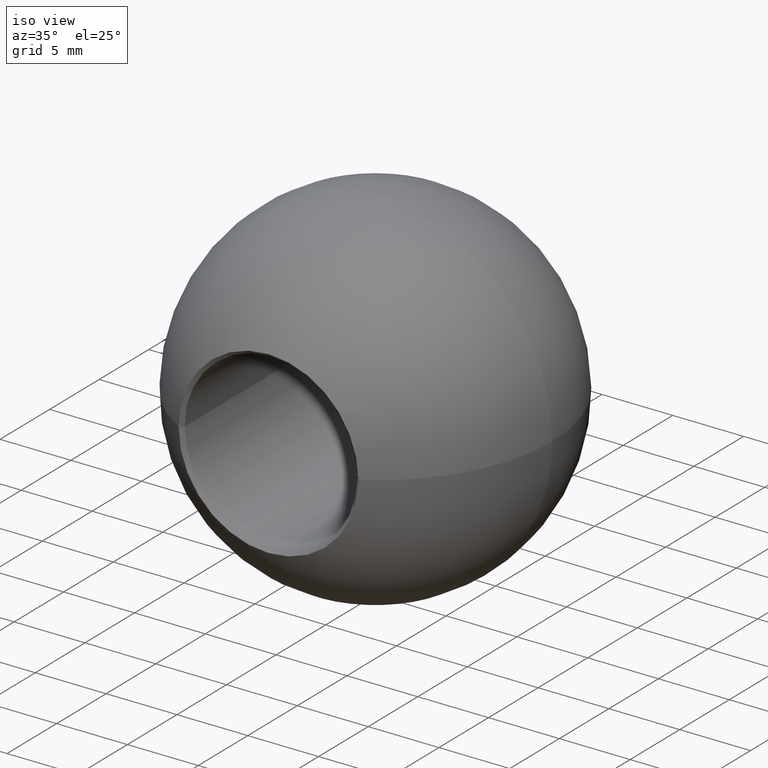
[diagram: clean part render]
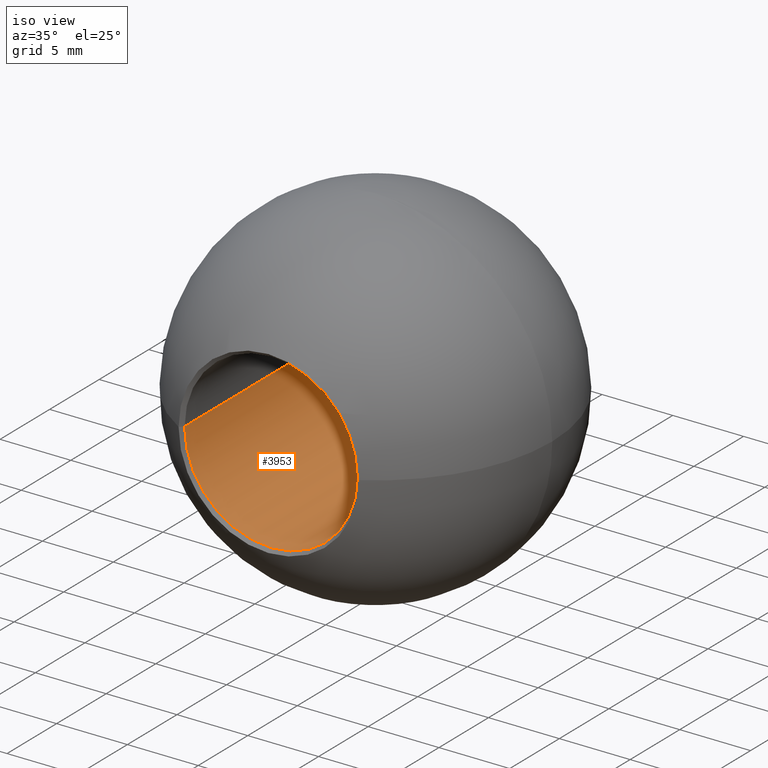
[diagram: same view with one face highlighted and labeled with its STEP entity id]
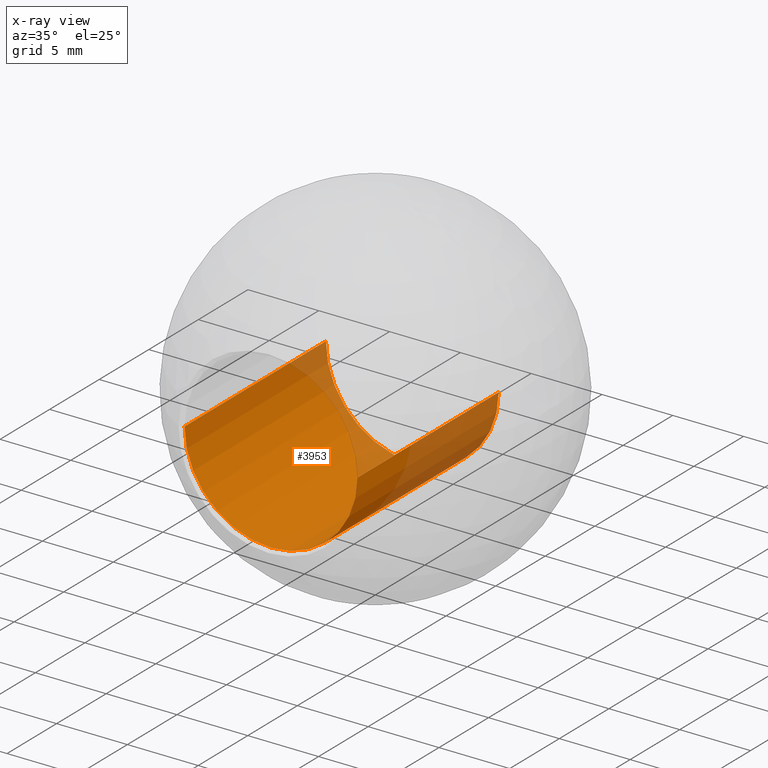
[diagram: x-ray of the same camera — body ghosted, the highlighted face saturated]
A machine part, iso view. The second image highlights one B-rep face of the part: STEP entity #3953.
The next image is the same camera in x-ray: the body ghosted, the highlighted face saturated — about 22% of this face is hidden behind the body in this view.
In plain terms, the highlighted cylindrical surface (partial cylindrical patch) has radius 6.1 mm, axis along (-0, -1, -0).
Its self-contained STEP definition (entity closure, byte-faithful):
#289 = LINE ( 'NONE', #594, #6910 ) ;
#396 = CIRCLE ( 'NONE', #5668, 6.100000000000003200 ) ;
#594 = CARTESIAN_POINT ( 'NONE',  ( 6.100000000000002300, 7.398286415862954400, 0.0000000000000000000 ) ) ;
#1104 = VERTEX_POINT ( 'NONE', #3922 ) ;
#1610 = EDGE_CURVE ( 'NONE', #11015, #1104, #396, .T. ) ;
#1976 = VERTEX_POINT ( 'NONE', #5494 ) ;
#2018 = FACE_OUTER_BOUND ( 'NONE', #8879, .T. ) ;
#2429 = VECTOR ( 'NONE', #3820, 1000.000000000000000 ) ;
#2892 = CARTESIAN_POINT ( 'NONE',  ( -6.100000000000001400, 3.733036639794860000, 7.470345474798856300E-016 ) ) ;
#3236 = DIRECTION ( 'NONE',  ( -3.795949471969979100E-019, -1.000000000000000000, -0.0000000000000000000 ) ) ;
#3414 = ORIENTED_EDGE ( 'NONE', *, *, #11497, .F. ) ;
#3820 = DIRECTION ( 'NONE',  ( -3.795949471969979100E-019, -1.000000000000000000, -0.0000000000000000000 ) ) ;
#3922 = CARTESIAN_POINT ( 'NONE',  ( 6.100000000000003200, -10.51696336020513400, 0.0000000000000000000 ) ) ;
#3929 = DIRECTION ( 'NONE',  ( -3.795949471969979100E-019, -1.000000000000000000, -0.0000000000000000000 ) ) ;
#3953 = ADVANCED_FACE ( 'NONE', ( #2018 ), #6679, .F. ) ;
#4121 = CARTESIAN_POINT ( 'NONE',  ( -6.100000000000003200, -10.51696336020513400, 7.623426324692276200E-016 ) ) ;
#5494 = CARTESIAN_POINT ( 'NONE',  ( 6.100000000000001400, 3.733036639794860000, 0.0000000000000000000 ) ) ;
#5668 = AXIS2_PLACEMENT_3D ( 'NONE', #5951, #3929, #10696 ) ;
#5780 = CARTESIAN_POINT ( 'NONE',  ( -6.100000000000002300, 7.398286415862954400, 7.470345474798857300E-016 ) ) ;
#5951 = CARTESIAN_POINT ( 'NONE',  ( -8.737122991352304000E-018, -10.51696336020513400, 0.0000000000000000000 ) ) ;
#6134 = CARTESIAN_POINT ( 'NONE',  ( -3.327894993795085900E-018, 3.733036639794860000, 0.0000000000000000000 ) ) ;
#6141 = DIRECTION ( 'NONE',  ( 1.000000000000000000, 0.0000000000000000000, 0.0000000000000000000 ) ) ;
#6679 = CYLINDRICAL_SURFACE ( 'NONE', #10510, 6.100000000000002300 ) ;
#6910 = VECTOR ( 'NONE', #12200, 1000.000000000000000 ) ;
#7154 = DIRECTION ( 'NONE',  ( 1.000000000000000000, 0.0000000000000000000, 0.0000000000000000000 ) ) ;
#7282 = ORIENTED_EDGE ( 'NONE', *, *, #10293, .T. ) ;
#7640 = AXIS2_PLACEMENT_3D ( 'NONE', #6134, #11942, #7154 ) ;
#8557 = LINE ( 'NONE', #5780, #2429 ) ;
#8854 = CIRCLE ( 'NONE', #7640, 6.100000000000001400 ) ;
#8879 = EDGE_LOOP ( 'NONE', ( #3414, #7282, #9184, #9857 ) ) ;
#9184 = ORIENTED_EDGE ( 'NONE', *, *, #1610, .T. ) ;
#9857 = ORIENTED_EDGE ( 'NONE', *, *, #11631, .F. ) ;
#9906 = VERTEX_POINT ( 'NONE', #2892 ) ;
#10044 = CARTESIAN_POINT ( 'NONE',  ( -1.936584698584708900E-018, 7.398286415862954400, 0.0000000000000000000 ) ) ;
#10293 = EDGE_CURVE ( 'NONE', #9906, #11015, #8557, .T. ) ;
#10510 = AXIS2_PLACEMENT_3D ( 'NONE', #10044, #3236, #6141 ) ;
#10696 = DIRECTION ( 'NONE',  ( 1.000000000000000000, 0.0000000000000000000, 0.0000000000000000000 ) ) ;
#11015 = VERTEX_POINT ( 'NONE', #4121 ) ;
#11497 = EDGE_CURVE ( 'NONE', #9906, #1976, #8854, .T. ) ;
#11631 = EDGE_CURVE ( 'NONE', #1976, #1104, #289, .T. ) ;
#11942 = DIRECTION ( 'NONE',  ( -3.795949471969979100E-019, -1.000000000000000000, -0.0000000000000000000 ) ) ;
#12200 = DIRECTION ( 'NONE',  ( -3.795949471969979100E-019, -1.000000000000000000, -0.0000000000000000000 ) ) ;